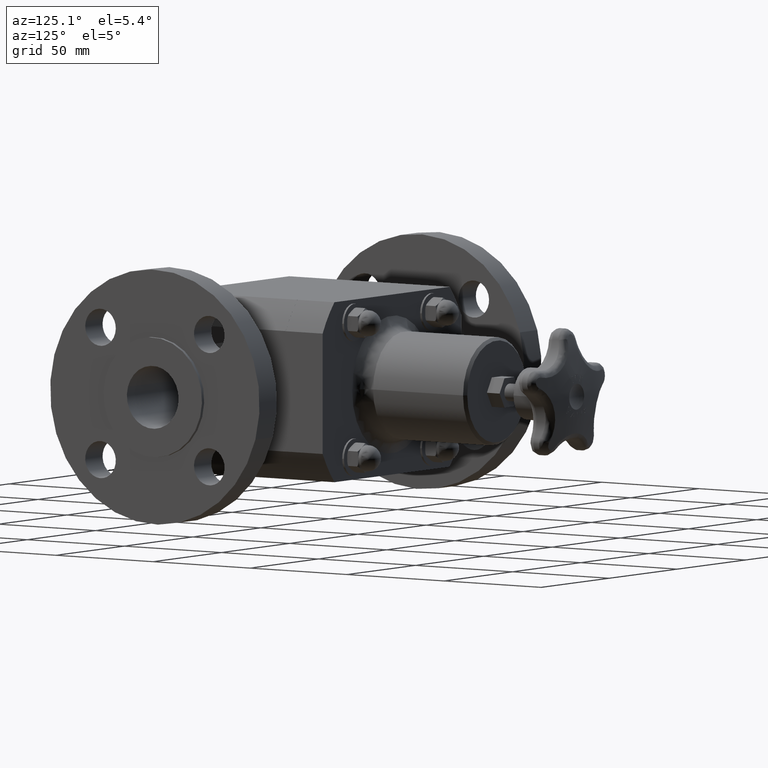
[diagram: clean part render]
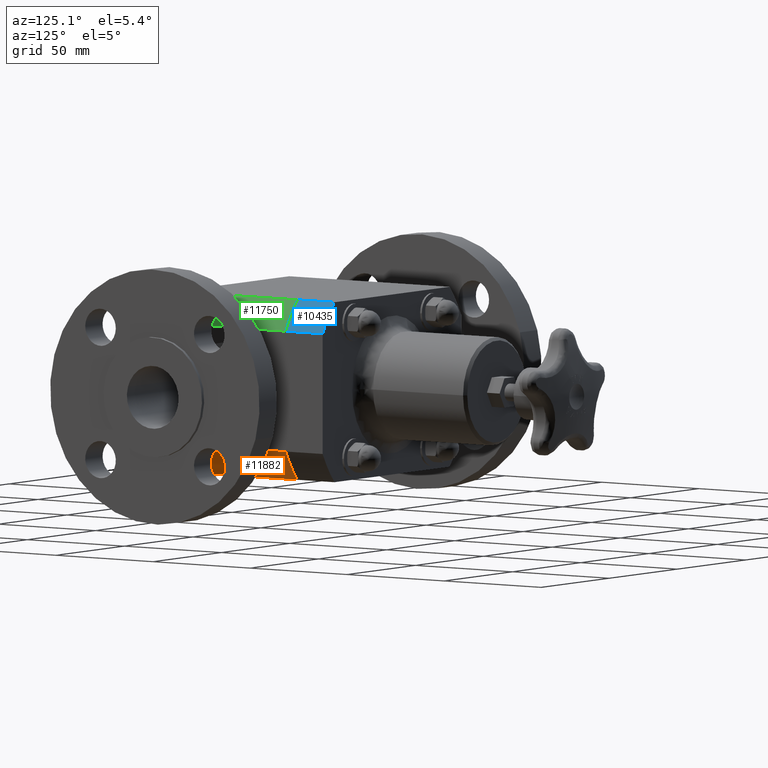
[diagram: same view with three faces highlighted in distinct colors, each labeled with its STEP entity id]
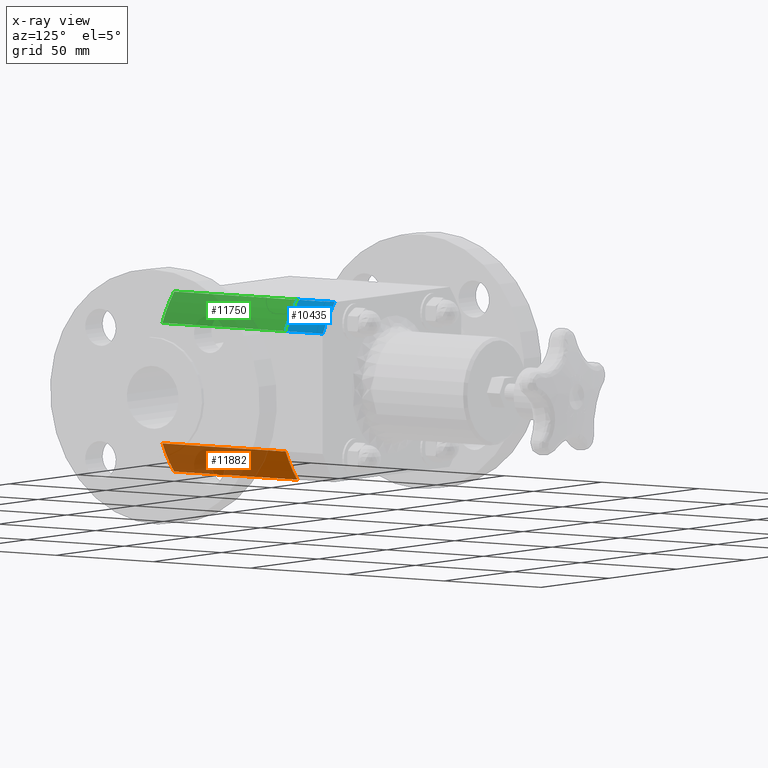
[diagram: x-ray of the same camera — body ghosted, the three highlighted faces saturated]
A machine part, auxiliary view with three faces highlighted in distinct colors.
The next image is the same camera in x-ray (body ghosted, the three faces saturated) — at least one of them is partly hidden behind the body in this view.
Their STEP definitions:

[orange] entity #11882 — the highlighted cylindrical surface (partial cylindrical patch) has radius 56.8452 mm, axis along (-0, 1, -0).
#10723=CARTESIAN_POINT('',(1.999999999999999,2.500000000000000,-1.004312700308026));
#10724=VERTEX_POINT('',#10723);
#10731=CARTESIAN_POINT('',(1.660916614403023,2.500000000000000,-1.500000000000000));
#10732=VERTEX_POINT('',#10731);
#10733=CARTESIAN_POINT('',(-5.551115E-016,2.500000000000000,-2.146630E-017));
#10734=DIRECTION('',(1.738857E-016,-1.000000000000000,-8.731778E-017));
#10735=DIRECTION('',(-0.893655049151028,-1.945780E-016,0.448754557778385));
#10736=AXIS2_PLACEMENT_3D('',#10733,#10734,#10735);
#10737=CIRCLE('',#10736,2.238000000000000);
#10738=EDGE_CURVE('',#10732,#10724,#10737,.T.);
#11395=CARTESIAN_POINT('',(2.0,4.354657E-016,-1.004312700308026));
#11396=VERTEX_POINT('',#11395);
#11403=CARTESIAN_POINT('',(2.0,4.354657E-016,-1.004312700308026));
#11404=DIRECTION('',(0.0,1.0,0.0));
#11405=VECTOR('',#11404,2.500000000000000);
#11406=LINE('',#11403,#11405);
#11407=EDGE_CURVE('',#11396,#10724,#11406,.T.);
#11847=CARTESIAN_POINT('',(1.660916614403023,3.559178E-016,-1.500000000000000));
#11848=VERTEX_POINT('',#11847);
#11849=CARTESIAN_POINT('',(1.660916614403023,3.559178E-016,-1.500000000000000));
#11850=DIRECTION('',(0.0,1.0,0.0));
#11851=VECTOR('',#11850,2.500000000000000);
#11852=LINE('',#11849,#11851);
#11853=EDGE_CURVE('',#11848,#10732,#11852,.T.);
#11865=CARTESIAN_POINT('',(0.0,0.0,0.0));
#11866=DIRECTION('',(-2.220446E-016,1.0,-8.586518E-018));
#11867=DIRECTION('',(-0.893655049151028,-1.945780E-016,0.448754557778385));
#11868=AXIS2_PLACEMENT_3D('',#11865,#11866,#11867);
#11869=CYLINDRICAL_SURFACE('',#11868,2.238000000000000);
#11870=ORIENTED_EDGE('',*,*,#10738,.T.);
#11871=ORIENTED_EDGE('',*,*,#11407,.F.);
#11872=CARTESIAN_POINT('',(0.0,0.0,0.0));
#11873=DIRECTION('',(1.738857E-016,-1.000000000000000,-8.731778E-017));
#11874=DIRECTION('',(-0.893655049151028,-1.945780E-016,0.448754557778385));
#11875=AXIS2_PLACEMENT_3D('',#11872,#11873,#11874);
#11876=CIRCLE('',#11875,2.238000000000000);
#11877=EDGE_CURVE('',#11848,#11396,#11876,.T.);
#11878=ORIENTED_EDGE('',*,*,#11877,.F.);
#11879=ORIENTED_EDGE('',*,*,#11853,.T.);
#11880=EDGE_LOOP('',(#11870,#11871,#11878,#11879));
#11881=FACE_OUTER_BOUND('',#11880,.T.);
#11882=ADVANCED_FACE('',(#11881),#11869,.T.);

[blue] entity #10435 — the highlighted cylindrical surface (partial cylindrical patch) has radius 56.8325 mm, axis along (0, -1, -0).
#10394=CARTESIAN_POINT('',(-3.785906E-015,2.875000000000041,-7.459457E-016));
#10395=DIRECTION('',(1.004159E-015,-1.0,-4.857747E-033));
#10396=DIRECTION('',(1.0,0.0,0.0));
#10397=AXIS2_PLACEMENT_3D('',#10394,#10395,#10396);
#10398=CYLINDRICAL_SURFACE('',#10397,2.237500000000000);
#10399=CARTESIAN_POINT('',(1.660242828624774,2.500000000000044,1.499999999999999));
#10400=VERTEX_POINT('',#10399);
#10401=CARTESIAN_POINT('',(1.660242828624773,3.250000000000043,1.499999999999999));
#10402=VERTEX_POINT('',#10401);
#10403=CARTESIAN_POINT('',(1.660242828624774,2.500000000000044,1.499999999999999));
#10404=DIRECTION('',(0.0,1.0,0.0));
#10405=VECTOR('',#10404,0.750000000000000);
#10406=LINE('',#10403,#10405);
#10407=EDGE_CURVE('',#10400,#10402,#10406,.T.);
#10408=ORIENTED_EDGE('',*,*,#10407,.F.);
#10409=CARTESIAN_POINT('',(1.999999999999996,2.500000000000044,1.003198011361666));
#10410=VERTEX_POINT('',#10409);
#10411=CARTESIAN_POINT('',(-3.409346E-015,2.500000000000000,-7.459457E-016));
#10412=DIRECTION('',(0.0,-1.0,0.0));
#10413=DIRECTION('',(1.0,0.0,0.0));
#10414=AXIS2_PLACEMENT_3D('',#10411,#10412,#10413);
#10415=CIRCLE('',#10414,2.237500000000000);
#10416=EDGE_CURVE('',#10410,#10400,#10415,.T.);
#10417=ORIENTED_EDGE('',*,*,#10416,.F.);
#10418=CARTESIAN_POINT('',(1.999999999999995,3.250000000000044,1.003198011361666));
#10419=VERTEX_POINT('',#10418);
#10420=CARTESIAN_POINT('',(1.999999999999995,3.250000000000044,1.003198011361666));
#10421=DIRECTION('',(0.0,-1.0,0.0));
#10422=VECTOR('',#10421,0.750000000000000);
#10423=LINE('',#10420,#10422);
#10424=EDGE_CURVE('',#10419,#10410,#10423,.T.);
#10425=ORIENTED_EDGE('',*,*,#10424,.F.);
#10426=CARTESIAN_POINT('',(-4.162465E-015,3.250000000000042,-7.459457E-016));
#10427=DIRECTION('',(0.0,-1.0,0.0));
#10428=DIRECTION('',(1.0,0.0,0.0));
#10429=AXIS2_PLACEMENT_3D('',#10426,#10427,#10428);
#10430=CIRCLE('',#10429,2.237500000000000);
#10431=EDGE_CURVE('',#10419,#10402,#10430,.T.);
#10432=ORIENTED_EDGE('',*,*,#10431,.T.);
#10433=EDGE_LOOP('',(#10408,#10417,#10425,#10432));
#10434=FACE_OUTER_BOUND('',#10433,.T.);
#10435=ADVANCED_FACE('',(#10434),#10398,.T.);

[green] entity #11750 — the highlighted cylindrical surface (partial cylindrical patch) has radius 56.8452 mm, axis along (-0, 1, -0).
#11379=CARTESIAN_POINT('',(1.999999999999999,2.500000000000000,1.004312700308027));
#11380=VERTEX_POINT('',#11379);
#11387=CARTESIAN_POINT('',(2.0,4.527128E-016,1.004312700308027));
#11388=VERTEX_POINT('',#11387);
#11389=CARTESIAN_POINT('',(2.0,4.527128E-016,1.004312700308027));
#11390=DIRECTION('',(0.0,1.0,0.0));
#11391=VECTOR('',#11390,2.500000000000000);
#11392=LINE('',#11389,#11391);
#11393=EDGE_CURVE('',#11388,#11380,#11392,.T.);
#11718=CARTESIAN_POINT('',(0.0,0.0,0.0));
#11719=DIRECTION('',(-2.220446E-016,1.0,-8.586518E-018));
#11720=DIRECTION('',(-0.742143259340046,-1.705439E-016,-0.670241286863271));
#11721=AXIS2_PLACEMENT_3D('',#11718,#11719,#11720);
#11722=CYLINDRICAL_SURFACE('',#11721,2.238000000000000);
#11723=CARTESIAN_POINT('',(1.660916614403022,2.500000000000000,1.500000000000000));
#11724=VERTEX_POINT('',#11723);
#11725=CARTESIAN_POINT('',(-5.551115E-016,2.500000000000000,-2.146630E-017));
#11726=DIRECTION('',(1.265680E-016,-1.0,1.143056E-016));
#11727=DIRECTION('',(-0.742143259340046,-1.705439E-016,-0.670241286863271));
#11728=AXIS2_PLACEMENT_3D('',#11725,#11726,#11727);
#11729=CIRCLE('',#11728,2.238000000000000);
#11730=EDGE_CURVE('',#11380,#11724,#11729,.T.);
#11731=ORIENTED_EDGE('',*,*,#11730,.T.);
#11732=CARTESIAN_POINT('',(1.660916614403023,3.816774E-016,1.500000000000000));
#11733=VERTEX_POINT('',#11732);
#11734=CARTESIAN_POINT('',(1.660916614403023,3.816774E-016,1.500000000000000));
#11735=DIRECTION('',(0.0,1.0,0.0));
#11736=VECTOR('',#11735,2.500000000000000);
#11737=LINE('',#11734,#11736);
#11738=EDGE_CURVE('',#11733,#11724,#11737,.T.);
#11739=ORIENTED_EDGE('',*,*,#11738,.F.);
#11740=CARTESIAN_POINT('',(0.0,0.0,0.0));
#11741=DIRECTION('',(1.265680E-016,-1.0,1.143056E-016));
#11742=DIRECTION('',(-0.742143259340046,-1.705439E-016,-0.670241286863271));
#11743=AXIS2_PLACEMENT_3D('',#11740,#11741,#11742);
#11744=CIRCLE('',#11743,2.238000000000000);
#11745=EDGE_CURVE('',#11388,#11733,#11744,.T.);
#11746=ORIENTED_EDGE('',*,*,#11745,.F.);
#11747=ORIENTED_EDGE('',*,*,#11393,.T.);
#11748=EDGE_LOOP('',(#11731,#11739,#11746,#11747));
#11749=FACE_OUTER_BOUND('',#11748,.T.);
#11750=ADVANCED_FACE('',(#11749),#11722,.T.);